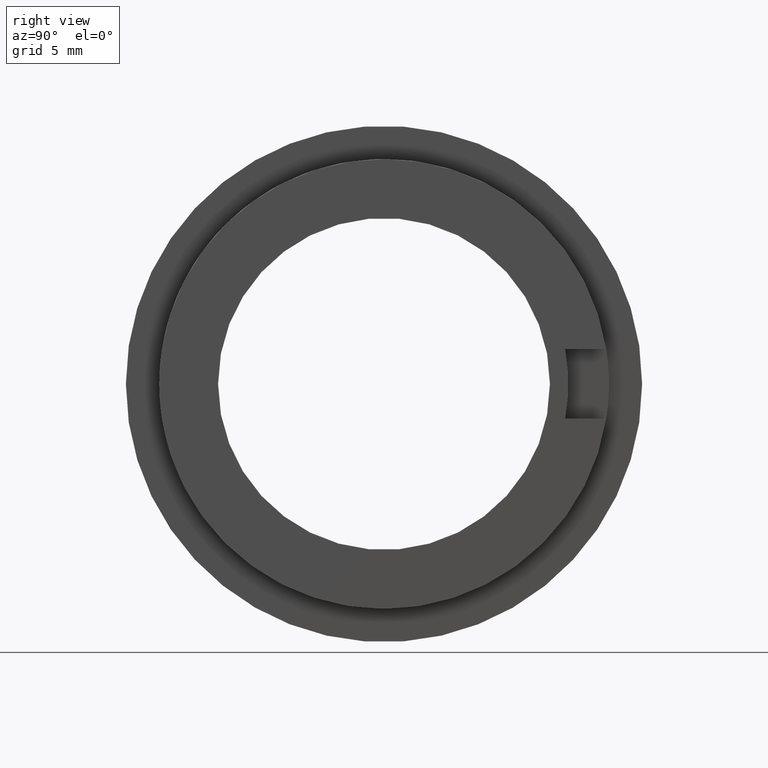
[diagram: clean part render]
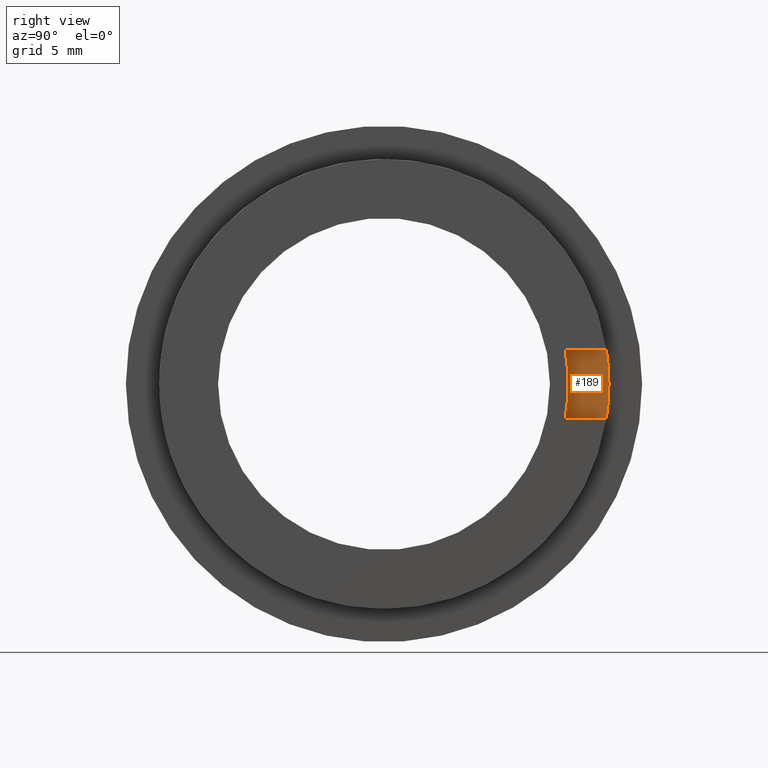
[diagram: same view with one face highlighted and labeled with its STEP entity id]
A machine part, right view. The second image highlights one B-rep face of the part: STEP entity #189.
In plain terms, the highlighted planar face has unit normal (1, 0, 0).
Its self-contained STEP definition (entity closure, byte-faithful):
#73=CARTESIAN_POINT('',(-4.222580550947495,16.930337949835174,2.350000000000001));
#74=VERTEX_POINT('',#73);
#75=CARTESIAN_POINT('',(-4.222580550947495,16.930337949835174,-2.349999999999998));
#76=VERTEX_POINT('',#75);
#77=CARTESIAN_POINT('',(-4.222580550947495,4.653225097050933,0.0));
#78=DIRECTION('',(-1.0,0.0,0.0));
#79=DIRECTION('',(0.0,-0.982169028222739,0.188000000000000));
#80=AXIS2_PLACEMENT_3D('',#77,#78,#79);
#81=CIRCLE('',#80,12.500000000000000);
#82=EDGE_CURVE('',#74,#76,#81,.T.);
#115=CARTESIAN_POINT('',(-4.222580550947495,19.721071658520824,-2.349999999999998));
#116=VERTEX_POINT('',#115);
#117=CARTESIAN_POINT('',(-4.222580550947495,16.930337949835174,-2.349999999999998));
#118=DIRECTION('',(0.0,1.0,0.0));
#119=VECTOR('',#118,2.790733708685650);
#120=LINE('',#117,#119);
#121=EDGE_CURVE('',#76,#116,#120,.T.);
#146=CARTESIAN_POINT('',(-4.222580550947495,19.721071658520824,2.350000000000002));
#147=VERTEX_POINT('',#146);
#148=CARTESIAN_POINT('',(-4.222580550947495,19.721071658520824,2.350000000000002));
#149=DIRECTION('',(0.0,-1.0,0.0));
#150=VECTOR('',#149,2.790733708685650);
#151=LINE('',#148,#150);
#152=EDGE_CURVE('',#147,#74,#151,.T.);
#172=CARTESIAN_POINT('',(-4.222580550947495,18.401191787817602,2.365684E-015));
#173=DIRECTION('',(1.0,0.0,0.0));
#174=DIRECTION('',(0.0,0.0,-1.0));
#175=AXIS2_PLACEMENT_3D('',#172,#173,#174);
#176=PLANE('',#175);
#177=ORIENTED_EDGE('',*,*,#82,.T.);
#178=ORIENTED_EDGE('',*,*,#121,.T.);
#179=CARTESIAN_POINT('',(-4.222580550947495,4.653225097050933,0.0));
#180=DIRECTION('',(-1.0,0.0,0.0));
#181=DIRECTION('',(0.0,1.0,0.0));
#182=AXIS2_PLACEMENT_3D('',#179,#180,#181);
#183=CIRCLE('',#182,15.250000000000002);
#184=EDGE_CURVE('',#147,#116,#183,.T.);
#185=ORIENTED_EDGE('',*,*,#184,.F.);
#186=ORIENTED_EDGE('',*,*,#152,.T.);
#187=EDGE_LOOP('',(#177,#178,#185,#186));
#188=FACE_OUTER_BOUND('',#187,.T.);
#189=ADVANCED_FACE('',(#188),#176,.T.);